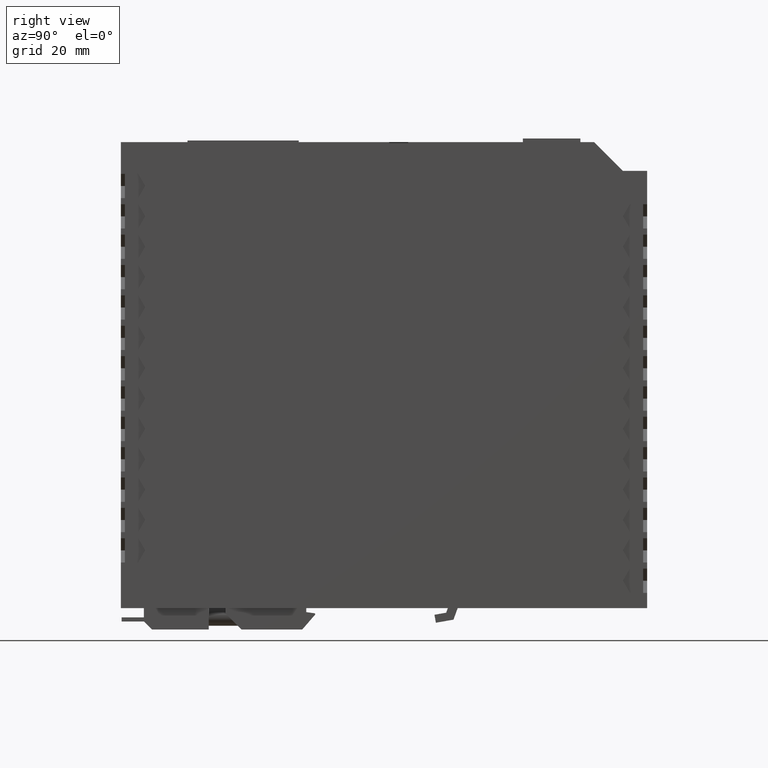
[diagram: clean part render]
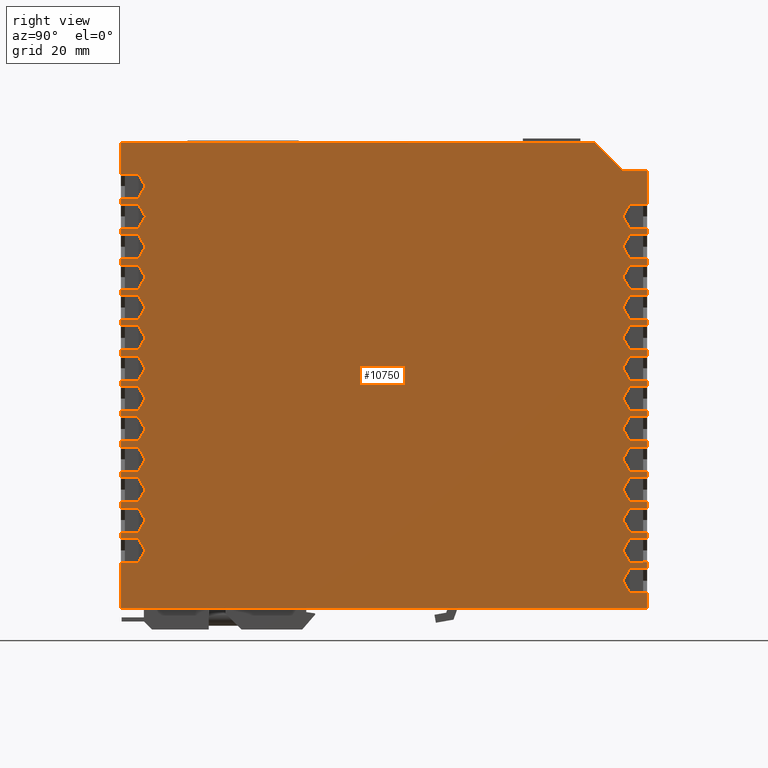
[diagram: same view with one face highlighted and labeled with its STEP entity id]
A machine part, right view. The second image highlights one B-rep face of the part: STEP entity #10750.
In plain terms, the highlighted planar face has unit normal (-1, 0, 0).
Its self-contained STEP definition (entity closure, byte-faithful):
#640=CARTESIAN_POINT('',(32.,-65.,1.));
#650=DIRECTION('',(-1.,0.,0.));
#660=DIRECTION('',(0.,1.,0.));
#670=AXIS2_PLACEMENT_3D('',#640,#650,#660);
#680=PLANE('',#670);
#690=CARTESIAN_POINT('',(32.,-65.,-113.527604780797));
#700=DIRECTION('',(0.,1.,0.));
#710=VECTOR('',#700,1.);
#720=LINE('',#690,#710);
#730=CARTESIAN_POINT('',(32.,-65.,-113.527604780797));
#740=VERTEX_POINT('',#730);
#750=CARTESIAN_POINT('',(32.,65.,-113.527604780797));
#760=VERTEX_POINT('',#750);
#770=EDGE_CURVE('',#740,#760,#720,.T.);
#780=ORIENTED_EDGE('',*,*,#770,.T.);
#790=CARTESIAN_POINT('',(32.,-65.,1.));
#800=DIRECTION('',(0.,0.,1.));
#810=VECTOR('',#800,1.);
#820=LINE('',#790,#810);
#830=CARTESIAN_POINT('',(32.,-65.,-102.277604780797));
#840=VERTEX_POINT('',#830);
#850=EDGE_CURVE('',#740,#840,#820,.T.);
#860=ORIENTED_EDGE('',*,*,#850,.F.);
#870=CARTESIAN_POINT('',(32.,-65.,-102.277604780797));
#880=DIRECTION('',(0.,1.,0.));
#890=VECTOR('',#880,1.);
#900=LINE('',#870,#890);
#910=CARTESIAN_POINT('',(32.,-60.73,-102.277604780797));
#920=VERTEX_POINT('',#910);
#930=EDGE_CURVE('',#840,#920,#900,.T.);
#940=ORIENTED_EDGE('',*,*,#930,.F.);
#950=CARTESIAN_POINT('',(32.,-0.829909571573609,1.47239521920267));
#960=DIRECTION('',(0.,0.500000000000017,0.866025403784429));
#970=VECTOR('',#960,1.);
#980=LINE('',#950,#970);
#990=CARTESIAN_POINT('',(32.,-58.997949192431,-99.2776047807974));
#1000=VERTEX_POINT('',#990);
#1010=EDGE_CURVE('',#920,#1000,#980,.T.);
#1020=ORIENTED_EDGE('',*,*,#1010,.F.);
#1030=CARTESIAN_POINT('',(32.,-117.165988813288,1.47239521920267));
#1040=DIRECTION('',(0.,-0.500000000000017,0.866025403784429));
#1050=VECTOR('',#1040,1.);
#1060=LINE('',#1030,#1050);
#1070=CARTESIAN_POINT('',(32.,-60.73,-96.2776047807973));
#1080=VERTEX_POINT('',#1070);
#1090=EDGE_CURVE('',#1000,#1080,#1060,.T.);
#1100=ORIENTED_EDGE('',*,*,#1090,.F.);
#1110=CARTESIAN_POINT('',(32.,-65.,-96.2776047807973));
#1120=DIRECTION('',(0.,-1.,0.));
#1130=VECTOR('',#1120,1.);
#1140=LINE('',#1110,#1130);
#1150=CARTESIAN_POINT('',(32.,-65.,-96.2776047807973));
#1160=VERTEX_POINT('',#1150);
#1170=EDGE_CURVE('',#1080,#1160,#1140,.T.);
#1180=ORIENTED_EDGE('',*,*,#1170,.F.);
#1190=CARTESIAN_POINT('',(32.,-65.,1.47239521920267));
#1200=DIRECTION('',(0.,0.,1.));
#1210=VECTOR('',#1200,1.);
#1220=LINE('',#1190,#1210);
#1230=CARTESIAN_POINT('',(32.,-65.,-94.7776047807973));
#1240=VERTEX_POINT('',#1230);
#1250=EDGE_CURVE('',#1160,#1240,#1220,.T.);
#1260=ORIENTED_EDGE('',*,*,#1250,.F.);
#1270=CARTESIAN_POINT('',(32.,-65.,-94.7776047807973));
#1280=DIRECTION('',(0.,1.,0.));
#1290=VECTOR('',#1280,1.);
#1300=LINE('',#1270,#1290);
#1310=CARTESIAN_POINT('',(32.,-60.73,-94.7776047807973));
#1320=VERTEX_POINT('',#1310);
#1330=EDGE_CURVE('',#1240,#1320,#1300,.T.);
#1340=ORIENTED_EDGE('',*,*,#1330,.F.);
#1350=CARTESIAN_POINT('',(32.,-5.16003659049599,1.47239521920267));
#1360=DIRECTION('',(0.,0.500000000000017,0.866025403784429));
#1370=VECTOR('',#1360,1.);
#1380=LINE('',#1350,#1370);
#1390=CARTESIAN_POINT('',(32.,-58.997949192431,-91.7776047807974));
#1400=VERTEX_POINT('',#1390);
#1410=EDGE_CURVE('',#1320,#1400,#1380,.T.);
#1420=ORIENTED_EDGE('',*,*,#1410,.F.);
#1430=CARTESIAN_POINT('',(32.,-112.835861794366,1.47239521920267));
#1440=DIRECTION('',(0.,-0.500000000000017,0.866025403784429));
#1450=VECTOR('',#1440,1.);
#1460=LINE('',#1430,#1450);
#1470=CARTESIAN_POINT('',(32.,-60.73,-88.7776047807973));
#1480=VERTEX_POINT('',#1470);
#1490=EDGE_CURVE('',#1400,#1480,#1460,.T.);
#1500=ORIENTED_EDGE('',*,*,#1490,.F.);
#1510=CARTESIAN_POINT('',(32.,-65.,-88.7776047807973));
#1520=DIRECTION('',(0.,-1.,0.));
#1530=VECTOR('',#1520,1.);
#1540=LINE('',#1510,#1530);
#1550=CARTESIAN_POINT('',(32.,-65.,-88.7776047807973));
#1560=VERTEX_POINT('',#1550);
#1570=EDGE_CURVE('',#1480,#1560,#1540,.T.);
#1580=ORIENTED_EDGE('',*,*,#1570,.F.);
#1590=CARTESIAN_POINT('',(32.,-65.,-87.2776047807973));
#1600=VERTEX_POINT('',#1590);
#1610=EDGE_CURVE('',#1560,#1600,#1220,.T.);
#1620=ORIENTED_EDGE('',*,*,#1610,.F.);
#1630=CARTESIAN_POINT('',(32.,-65.,-87.2776047807973));
#1640=DIRECTION('',(0.,1.,0.));
#1650=VECTOR('',#1640,1.);
#1660=LINE('',#1630,#1650);
#1670=CARTESIAN_POINT('',(32.,-60.73,-87.2776047807973));
#1680=VERTEX_POINT('',#1670);
#1690=EDGE_CURVE('',#1600,#1680,#1660,.T.);
#1700=ORIENTED_EDGE('',*,*,#1690,.F.);
#1710=CARTESIAN_POINT('',(32.,-9.49016360941838,1.47239521920267));
#1720=DIRECTION('',(0.,0.500000000000017,0.866025403784429));
#1730=VECTOR('',#1720,1.);
#1740=LINE('',#1710,#1730);
#1750=CARTESIAN_POINT('',(32.,-58.997949192431,-84.2776047807973));
#1760=VERTEX_POINT('',#1750);
#1770=EDGE_CURVE('',#1680,#1760,#1740,.T.);
#1780=ORIENTED_EDGE('',*,*,#1770,.F.);
#1790=CARTESIAN_POINT('',(32.,-108.505734775444,1.47239521920267));
#1800=DIRECTION('',(0.,-0.500000000000017,0.866025403784429));
#1810=VECTOR('',#1800,1.);
#1820=LINE('',#1790,#1810);
#1830=CARTESIAN_POINT('',(32.,-60.73,-81.2776047807973));
#1840=VERTEX_POINT('',#1830);
#1850=EDGE_CURVE('',#1760,#1840,#1820,.T.);
#1860=ORIENTED_EDGE('',*,*,#1850,.F.);
#1870=CARTESIAN_POINT('',(32.,-65.,-81.2776047807973));
#1880=DIRECTION('',(0.,-1.,0.));
#1890=VECTOR('',#1880,1.);
#1900=LINE('',#1870,#1890);
#1910=CARTESIAN_POINT('',(32.,-65.,-81.2776047807973));
#1920=VERTEX_POINT('',#1910);
#1930=EDGE_CURVE('',#1840,#1920,#1900,.T.);
#1940=ORIENTED_EDGE('',*,*,#1930,.F.);
#1950=CARTESIAN_POINT('',(32.,-65.,-79.7776047807973));
#1960=VERTEX_POINT('',#1950);
#1970=EDGE_CURVE('',#1920,#1960,#1220,.T.);
#1980=ORIENTED_EDGE('',*,*,#1970,.F.);
#1990=CARTESIAN_POINT('',(32.,-65.,-79.7776047807973));
#2000=DIRECTION('',(0.,1.,0.));
#2010=VECTOR('',#2000,1.);
#2020=LINE('',#1990,#2010);
#2030=CARTESIAN_POINT('',(32.,-60.73,-79.7776047807973));
#2040=VERTEX_POINT('',#2030);
#2050=EDGE_CURVE('',#1960,#2040,#2020,.T.);
#2060=ORIENTED_EDGE('',*,*,#2050,.F.);
#2070=CARTESIAN_POINT('',(32.,-13.8202906283408,1.47239521920267));
#2080=DIRECTION('',(0.,0.500000000000017,0.866025403784429));
#2090=VECTOR('',#2080,1.);
#2100=LINE('',#2070,#2090);
#2110=CARTESIAN_POINT('',(32.,-58.997949192431,-76.7776047807974));
#2120=VERTEX_POINT('',#2110);
#2130=EDGE_CURVE('',#2040,#2120,#2100,.T.);
#2140=ORIENTED_EDGE('',*,*,#2130,.F.);
#2150=CARTESIAN_POINT('',(32.,-104.175607756521,1.47239521920267));
#2160=DIRECTION('',(0.,-0.500000000000017,0.866025403784429));
#2170=VECTOR('',#2160,1.);
#2180=LINE('',#2150,#2170);
#2190=CARTESIAN_POINT('',(32.,-60.73,-73.7776047807973));
#2200=VERTEX_POINT('',#2190);
#2210=EDGE_CURVE('',#2120,#2200,#2180,.T.);
#2220=ORIENTED_EDGE('',*,*,#2210,.F.);
#2230=CARTESIAN_POINT('',(32.,-65.,-73.7776047807973));
#2240=DIRECTION('',(0.,-1.,0.));
#2250=VECTOR('',#2240,1.);
#2260=LINE('',#2230,#2250);
#2270=CARTESIAN_POINT('',(32.,-65.,-73.7776047807973));
#2280=VERTEX_POINT('',#2270);
#2290=EDGE_CURVE('',#2200,#2280,#2260,.T.);
#2300=ORIENTED_EDGE('',*,*,#2290,.F.);
#2310=CARTESIAN_POINT('',(32.,-65.,-72.2776047807973));
#2320=VERTEX_POINT('',#2310);
#2330=EDGE_CURVE('',#2280,#2320,#1220,.T.);
#2340=ORIENTED_EDGE('',*,*,#2330,.F.);
#2350=CARTESIAN_POINT('',(32.,-65.,-72.2776047807973));
#2360=DIRECTION('',(0.,1.,0.));
#2370=VECTOR('',#2360,1.);
#2380=LINE('',#2350,#2370);
#2390=CARTESIAN_POINT('',(32.,-60.73,-72.2776047807973));
#2400=VERTEX_POINT('',#2390);
#2410=EDGE_CURVE('',#2320,#2400,#2380,.T.);
#2420=ORIENTED_EDGE('',*,*,#2410,.F.);
#2430=CARTESIAN_POINT('',(32.,-18.1504176472631,1.47239521920267));
#2440=DIRECTION('',(0.,0.500000000000017,0.866025403784429));
#2450=VECTOR('',#2440,1.);
#2460=LINE('',#2430,#2450);
#2470=CARTESIAN_POINT('',(32.,-58.9979491924311,-69.2776047807973));
#2480=VERTEX_POINT('',#2470);
#2490=EDGE_CURVE('',#2400,#2480,#2460,.T.);
#2500=ORIENTED_EDGE('',*,*,#2490,.F.);
#2510=CARTESIAN_POINT('',(32.,-99.8454807375989,1.47239521920267));
#2520=DIRECTION('',(0.,-0.500000000000017,0.866025403784429));
#2530=VECTOR('',#2520,1.);
#2540=LINE('',#2510,#2530);
#2550=CARTESIAN_POINT('',(32.,-60.73,-66.2776047807973));
#2560=VERTEX_POINT('',#2550);
#2570=EDGE_CURVE('',#2480,#2560,#2540,.T.);
#2580=ORIENTED_EDGE('',*,*,#2570,.F.);
#2590=CARTESIAN_POINT('',(32.,-65.,-66.2776047807973));
#2600=DIRECTION('',(0.,-1.,0.));
#2610=VECTOR('',#2600,1.);
#2620=LINE('',#2590,#2610);
#2630=CARTESIAN_POINT('',(32.,-65.,-66.2776047807973));
#2640=VERTEX_POINT('',#2630);
#2650=EDGE_CURVE('',#2560,#2640,#2620,.T.);
#2660=ORIENTED_EDGE('',*,*,#2650,.F.);
#2670=CARTESIAN_POINT('',(32.,-65.,-64.7776047807973));
#2680=VERTEX_POINT('',#2670);
#2690=EDGE_CURVE('',#2640,#2680,#1220,.T.);
#2700=ORIENTED_EDGE('',*,*,#2690,.F.);
#2710=CARTESIAN_POINT('',(32.,-65.,-64.7776047807973));
#2720=DIRECTION('',(0.,1.,0.));
#2730=VECTOR('',#2720,1.);
#2740=LINE('',#2710,#2730);
#2750=CARTESIAN_POINT('',(32.,-60.73,-64.7776047807973));
#2760=VERTEX_POINT('',#2750);
#2770=EDGE_CURVE('',#2680,#2760,#2740,.T.);
#2780=ORIENTED_EDGE('',*,*,#2770,.F.);
#2790=CARTESIAN_POINT('',(32.,-22.4805446661855,1.47239521920267));
#2800=DIRECTION('',(0.,0.500000000000017,0.866025403784429));
#2810=VECTOR('',#2800,1.);
#2820=LINE('',#2790,#2810);
#2830=CARTESIAN_POINT('',(32.,-58.997949192431,-61.7776047807973));
#2840=VERTEX_POINT('',#2830);
#2850=EDGE_CURVE('',#2760,#2840,#2820,.T.);
#2860=ORIENTED_EDGE('',*,*,#2850,.F.);
#2870=CARTESIAN_POINT('',(32.,-95.5153537186765,1.47239521920267));
#2880=DIRECTION('',(0.,-0.500000000000017,0.866025403784429));
#2890=VECTOR('',#2880,1.);
#2900=LINE('',#2870,#2890);
#2910=CARTESIAN_POINT('',(32.,-60.73,-58.7776047807973));
#2920=VERTEX_POINT('',#2910);
#2930=EDGE_CURVE('',#2840,#2920,#2900,.T.);
#2940=ORIENTED_EDGE('',*,*,#2930,.F.);
#2950=CARTESIAN_POINT('',(32.,-65.,-58.7776047807973));
#2960=DIRECTION('',(0.,-1.,0.));
#2970=VECTOR('',#2960,1.);
#2980=LINE('',#2950,#2970);
#2990=CARTESIAN_POINT('',(32.,-65.,-58.7776047807973));
#3000=VERTEX_POINT('',#2990);
#3010=EDGE_CURVE('',#2920,#3000,#2980,.T.);
#3020=ORIENTED_EDGE('',*,*,#3010,.F.);
#3030=CARTESIAN_POINT('',(32.,-65.,-57.2776047807973));
#3040=VERTEX_POINT('',#3030);
#3050=EDGE_CURVE('',#3000,#3040,#1220,.T.);
#3060=ORIENTED_EDGE('',*,*,#3050,.F.);
#3070=CARTESIAN_POINT('',(32.,-65.,-57.2776047807973));
#3080=DIRECTION('',(0.,1.,0.));
#3090=VECTOR('',#3080,1.);
#3100=LINE('',#3070,#3090);
#3110=CARTESIAN_POINT('',(32.,-60.73,-57.2776047807973));
#3120=VERTEX_POINT('',#3110);
#3130=EDGE_CURVE('',#3040,#3120,#3100,.T.);
#3140=ORIENTED_EDGE('',*,*,#3130,.F.);
#3150=CARTESIAN_POINT('',(32.,-26.8106716851079,1.47239521920267));
#3160=DIRECTION('',(0.,0.500000000000017,0.866025403784429));
#3170=VECTOR('',#3160,1.);
#3180=LINE('',#3150,#3170);
#3190=CARTESIAN_POINT('',(32.,-58.997949192431,-54.2776047807973));
#3200=VERTEX_POINT('',#3190);
#3210=EDGE_CURVE('',#3120,#3200,#3180,.T.);
#3220=ORIENTED_EDGE('',*,*,#3210,.F.);
#3230=CARTESIAN_POINT('',(32.,-91.1852266997541,1.47239521920267));
#3240=DIRECTION('',(0.,-0.500000000000017,0.866025403784429));
#3250=VECTOR('',#3240,1.);
#3260=LINE('',#3230,#3250);
#3270=CARTESIAN_POINT('',(32.,-60.73,-51.2776047807973));
#3280=VERTEX_POINT('',#3270);
#3290=EDGE_CURVE('',#3200,#3280,#3260,.T.);
#3300=ORIENTED_EDGE('',*,*,#3290,.F.);
#3310=CARTESIAN_POINT('',(32.,-65.,-51.2776047807973));
#3320=DIRECTION('',(0.,-1.,0.));
#3330=VECTOR('',#3320,1.);
#3340=LINE('',#3310,#3330);
#3350=CARTESIAN_POINT('',(32.,-65.,-51.2776047807973));
#3360=VERTEX_POINT('',#3350);
#3370=EDGE_CURVE('',#3280,#3360,#3340,.T.);
#3380=ORIENTED_EDGE('',*,*,#3370,.F.);
#3390=CARTESIAN_POINT('',(32.,-65.,-49.7776047807973));
#3400=VERTEX_POINT('',#3390);
#3410=EDGE_CURVE('',#3360,#3400,#1220,.T.);
#3420=ORIENTED_EDGE('',*,*,#3410,.F.);
#3430=CARTESIAN_POINT('',(32.,-65.,-49.7776047807973));
#3440=DIRECTION('',(0.,1.,0.));
#3450=VECTOR('',#3440,1.);
#3460=LINE('',#3430,#3450);
#3470=CARTESIAN_POINT('',(32.,-60.73,-49.7776047807973));
#3480=VERTEX_POINT('',#3470);
#3490=EDGE_CURVE('',#3400,#3480,#3460,.T.);
#3500=ORIENTED_EDGE('',*,*,#3490,.F.);
#3510=CARTESIAN_POINT('',(32.,-31.1407987040303,1.47239521920267));
#3520=DIRECTION('',(0.,0.500000000000017,0.866025403784429));
#3530=VECTOR('',#3520,1.);
#3540=LINE('',#3510,#3530);
#3550=CARTESIAN_POINT('',(32.,-58.997949192431,-46.7776047807973));
#3560=VERTEX_POINT('',#3550);
#3570=EDGE_CURVE('',#3480,#3560,#3540,.T.);
#3580=ORIENTED_EDGE('',*,*,#3570,.F.);
#3590=CARTESIAN_POINT('',(32.,-86.8550996808317,1.47239521920267));
#3600=DIRECTION('',(0.,-0.500000000000017,0.866025403784429));
#3610=VECTOR('',#3600,1.);
#3620=LINE('',#3590,#3610);
#3630=CARTESIAN_POINT('',(32.,-60.73,-43.7776047807973));
#3640=VERTEX_POINT('',#3630);
#3650=EDGE_CURVE('',#3560,#3640,#3620,.T.);
#3660=ORIENTED_EDGE('',*,*,#3650,.F.);
#3670=CARTESIAN_POINT('',(32.,-65.,-43.7776047807973));
#3680=DIRECTION('',(0.,-1.,0.));
#3690=VECTOR('',#3680,1.);
#3700=LINE('',#3670,#3690);
#3710=CARTESIAN_POINT('',(32.,-65.,-43.7776047807973));
#3720=VERTEX_POINT('',#3710);
#3730=EDGE_CURVE('',#3640,#3720,#3700,.T.);
#3740=ORIENTED_EDGE('',*,*,#3730,.F.);
#3750=CARTESIAN_POINT('',(32.,-65.,-42.2776047807973));
#3760=VERTEX_POINT('',#3750);
#3770=EDGE_CURVE('',#3720,#3760,#1220,.T.);
#3780=ORIENTED_EDGE('',*,*,#3770,.F.);
#3790=CARTESIAN_POINT('',(32.,-65.,-42.2776047807973));
#3800=DIRECTION('',(0.,1.,0.));
#3810=VECTOR('',#3800,1.);
#3820=LINE('',#3790,#3810);
#3830=CARTESIAN_POINT('',(32.,-60.73,-42.2776047807973));
#3840=VERTEX_POINT('',#3830);
#3850=EDGE_CURVE('',#3760,#3840,#3820,.T.);
#3860=ORIENTED_EDGE('',*,*,#3850,.F.);
#3870=CARTESIAN_POINT('',(32.,-35.4709257229527,1.47239521920267));
#3880=DIRECTION('',(0.,0.500000000000017,0.866025403784429));
#3890=VECTOR('',#3880,1.);
#3900=LINE('',#3870,#3890);
#3910=CARTESIAN_POINT('',(32.,-58.997949192431,-39.2776047807973));
#3920=VERTEX_POINT('',#3910);
#3930=EDGE_CURVE('',#3840,#3920,#3900,.T.);
#3940=ORIENTED_EDGE('',*,*,#3930,.F.);
#3950=CARTESIAN_POINT('',(32.,-82.5249726619093,1.47239521920267));
#3960=DIRECTION('',(0.,-0.500000000000017,0.866025403784429));
#3970=VECTOR('',#3960,1.);
#3980=LINE('',#3950,#3970);
#3990=CARTESIAN_POINT('',(32.,-60.73,-36.2776047807973));
#4000=VERTEX_POINT('',#3990);
#4010=EDGE_CURVE('',#3920,#4000,#3980,.T.);
#4020=ORIENTED_EDGE('',*,*,#4010,.F.);
#4030=CARTESIAN_POINT('',(32.,-65.,-36.2776047807973));
#4040=DIRECTION('',(0.,-1.,0.));
#4050=VECTOR('',#4040,1.);
#4060=LINE('',#4030,#4050);
#4070=CARTESIAN_POINT('',(32.,-65.,-36.2776047807973));
#4080=VERTEX_POINT('',#4070);
#4090=EDGE_CURVE('',#4000,#4080,#4060,.T.);
#4100=ORIENTED_EDGE('',*,*,#4090,.F.);
#4110=CARTESIAN_POINT('',(32.,-65.,-34.7776047807973));
#4120=VERTEX_POINT('',#4110);
#4130=EDGE_CURVE('',#4080,#4120,#1220,.T.);
#4140=ORIENTED_EDGE('',*,*,#4130,.F.);
#4150=CARTESIAN_POINT('',(32.,-65.,-34.7776047807973));
#4160=DIRECTION('',(0.,1.,0.));
#4170=VECTOR('',#4160,1.);
#4180=LINE('',#4150,#4170);
#4190=CARTESIAN_POINT('',(32.,-60.73,-34.7776047807973));
#4200=VERTEX_POINT('',#4190);
#4210=EDGE_CURVE('',#4120,#4200,#4180,.T.);
#4220=ORIENTED_EDGE('',*,*,#4210,.F.);
#4230=CARTESIAN_POINT('',(32.,-39.8010527418751,1.47239521920267));
#4240=DIRECTION('',(0.,0.500000000000017,0.866025403784429));
#4250=VECTOR('',#4240,1.);
#4260=LINE('',#4230,#4250);
#4270=CARTESIAN_POINT('',(32.,-58.997949192431,-31.7776047807974));
#4280=VERTEX_POINT('',#4270);
#4290=EDGE_CURVE('',#4200,#4280,#4260,.T.);
#4300=ORIENTED_EDGE('',*,*,#4290,.F.);
#4310=CARTESIAN_POINT('',(32.,-78.194845642987,1.47239521920267));
#4320=DIRECTION('',(0.,-0.500000000000017,0.866025403784429));
#4330=VECTOR('',#4320,1.);
#4340=LINE('',#4310,#4330);
#4350=CARTESIAN_POINT('',(32.,-60.73,-28.7776047807973));
#4360=VERTEX_POINT('',#4350);
#4370=EDGE_CURVE('',#4280,#4360,#4340,.T.);
#4380=ORIENTED_EDGE('',*,*,#4370,.F.);
#4390=CARTESIAN_POINT('',(32.,-65.,-28.7776047807973));
#4400=DIRECTION('',(0.,-1.,0.));
#4410=VECTOR('',#4400,1.);
#4420=LINE('',#4390,#4410);
#4430=CARTESIAN_POINT('',(32.,-65.,-28.7776047807973));
#4440=VERTEX_POINT('',#4430);
#4450=EDGE_CURVE('',#4360,#4440,#4420,.T.);
#4460=ORIENTED_EDGE('',*,*,#4450,.F.);
#4470=CARTESIAN_POINT('',(32.,-65.,-27.2776047807973));
#4480=VERTEX_POINT('',#4470);
#4490=EDGE_CURVE('',#4440,#4480,#1220,.T.);
#4500=ORIENTED_EDGE('',*,*,#4490,.F.);
#4510=CARTESIAN_POINT('',(32.,-65.,-27.2776047807973));
#4520=DIRECTION('',(0.,1.,0.));
#4530=VECTOR('',#4520,1.);
#4540=LINE('',#4510,#4530);
#4550=CARTESIAN_POINT('',(32.,-60.73,-27.2776047807973));
#4560=VERTEX_POINT('',#4550);
#4570=EDGE_CURVE('',#4480,#4560,#4540,.T.);
#4580=ORIENTED_EDGE('',*,*,#4570,.F.);
#4590=CARTESIAN_POINT('',(32.,-44.1311797607975,1.47239521920267));
#4600=DIRECTION('',(0.,0.500000000000017,0.866025403784429));
#4610=VECTOR('',#4600,1.);
#4620=LINE('',#4590,#4610);
#4630=CARTESIAN_POINT('',(32.,-58.997949192431,-24.2776047807973));
#4640=VERTEX_POINT('',#4630);
#4650=EDGE_CURVE('',#4560,#4640,#4620,.T.);
#4660=ORIENTED_EDGE('',*,*,#4650,.F.);
#4670=CARTESIAN_POINT('',(32.,-73.8647186240646,1.47239521920267));
#4680=DIRECTION('',(0.,-0.500000000000017,0.866025403784429));
#4690=VECTOR('',#4680,1.);
#4700=LINE('',#4670,#4690);
#4710=CARTESIAN_POINT('',(32.,-60.73,-21.2776047807973));
#4720=VERTEX_POINT('',#4710);
#4730=EDGE_CURVE('',#4640,#4720,#4700,.T.);
#4740=ORIENTED_EDGE('',*,*,#4730,.F.);
#4750=CARTESIAN_POINT('',(32.,-65.,-21.2776047807973));
#4760=DIRECTION('',(0.,-1.,0.));
#4770=VECTOR('',#4760,1.);
#4780=LINE('',#4750,#4770);
#4790=CARTESIAN_POINT('',(32.,-65.,-21.2776047807973));
#4800=VERTEX_POINT('',#4790);
#4810=EDGE_CURVE('',#4720,#4800,#4780,.T.);
#4820=ORIENTED_EDGE('',*,*,#4810,.F.);
#4830=CARTESIAN_POINT('',(32.,-65.,-19.7776047807973));
#4840=VERTEX_POINT('',#4830);
#4850=EDGE_CURVE('',#4800,#4840,#1220,.T.);
#4860=ORIENTED_EDGE('',*,*,#4850,.F.);
#4870=CARTESIAN_POINT('',(32.,-65.,-19.7776047807973));
#4880=DIRECTION('',(0.,1.,0.));
#4890=VECTOR('',#4880,1.);
#4900=LINE('',#4870,#4890);
#4910=CARTESIAN_POINT('',(32.,-60.73,-19.7776047807973));
#4920=VERTEX_POINT('',#4910);
#4930=EDGE_CURVE('',#4840,#4920,#4900,.T.);
#4940=ORIENTED_EDGE('',*,*,#4930,.F.);
#4950=CARTESIAN_POINT('',(32.,-48.4613067797199,1.47239521920267));
#4960=DIRECTION('',(0.,0.500000000000017,0.866025403784429));
#4970=VECTOR('',#4960,1.);
#4980=LINE('',#4950,#4970);
#4990=CARTESIAN_POINT('',(32.,-58.9979491924311,-16.7776047807973));
#5000=VERTEX_POINT('',#4990);
#5010=EDGE_CURVE('',#4920,#5000,#4980,.T.);
#5020=ORIENTED_EDGE('',*,*,#5010,.F.);
#5030=CARTESIAN_POINT('',(32.,-69.5345916051422,1.47239521920267));
#5040=DIRECTION('',(0.,-0.500000000000017,0.866025403784429));
#5050=VECTOR('',#5040,1.);
#5060=LINE('',#5030,#5050);
#5070=CARTESIAN_POINT('',(32.,-60.73,-13.7776047807973));
#5080=VERTEX_POINT('',#5070);
#5090=EDGE_CURVE('',#5000,#5080,#5060,.T.);
#5100=ORIENTED_EDGE('',*,*,#5090,.F.);
#5110=CARTESIAN_POINT('',(32.,-65.,-13.7776047807973));
#5120=DIRECTION('',(0.,-1.,0.));
#5130=VECTOR('',#5120,1.);
#5140=LINE('',#5110,#5130);
#5150=CARTESIAN_POINT('',(32.,-65.,-13.7776047807973));
#5160=VERTEX_POINT('',#5150);
#5170=EDGE_CURVE('',#5080,#5160,#5140,.T.);
#5180=ORIENTED_EDGE('',*,*,#5170,.F.);
#5190=CARTESIAN_POINT('',(32.,-65.,-12.2776047807973));
#5200=VERTEX_POINT('',#5190);
#5210=EDGE_CURVE('',#5160,#5200,#1220,.T.);
#5220=ORIENTED_EDGE('',*,*,#5210,.F.);
#5230=CARTESIAN_POINT('',(32.,-65.,-12.2776047807973));
#5240=DIRECTION('',(0.,1.,0.));
#5250=VECTOR('',#5240,1.);
#5260=LINE('',#5230,#5250);
#5270=CARTESIAN_POINT('',(32.,-60.73,-12.2776047807973));
#5280=VERTEX_POINT('',#5270);
#5290=EDGE_CURVE('',#5200,#5280,#5260,.T.);
#5300=ORIENTED_EDGE('',*,*,#5290,.F.);
#5310=CARTESIAN_POINT('',(32.,-52.7914337986422,1.47239521920267));
#5320=DIRECTION('',(0.,0.500000000000017,0.866025403784429));
#5330=VECTOR('',#5320,1.);
#5340=LINE('',#5310,#5330);
#5350=CARTESIAN_POINT('',(32.,-58.997949192431,-9.27760478079738));
#5360=VERTEX_POINT('',#5350);
#5370=EDGE_CURVE('',#5280,#5360,#5340,.T.);
#5380=ORIENTED_EDGE('',*,*,#5370,.F.);
#5390=CARTESIAN_POINT('',(32.,-65.2044645862198,1.47239521920267));
#5400=DIRECTION('',(0.,-0.500000000000017,0.866025403784429));
#5410=VECTOR('',#5400,1.);
#5420=LINE('',#5390,#5410);
#5430=CARTESIAN_POINT('',(32.,-60.73,-6.27760478079733));
#5440=VERTEX_POINT('',#5430);
#5450=EDGE_CURVE('',#5360,#5440,#5420,.T.);
#5460=ORIENTED_EDGE('',*,*,#5450,.F.);
#5470=CARTESIAN_POINT('',(32.,-65.,-6.27760478079733));
#5480=DIRECTION('',(0.,-1.,0.));
#5490=VECTOR('',#5480,1.);
#5500=LINE('',#5470,#5490);
#5510=CARTESIAN_POINT('',(32.,-65.,-6.27760478079733));
#5520=VERTEX_POINT('',#5510);
#5530=EDGE_CURVE('',#5440,#5520,#5500,.T.);
#5540=ORIENTED_EDGE('',*,*,#5530,.F.);
#5550=CARTESIAN_POINT('',(32.,-65.,1.));
#5560=DIRECTION('',(0.,0.,1.));
#5570=VECTOR('',#5560,1.);
#5580=LINE('',#5550,#5570);
#5590=CARTESIAN_POINT('',(32.,-65.,1.37239521920267));
#5600=VERTEX_POINT('',#5590);
#5610=EDGE_CURVE('',#5520,#5600,#5580,.T.);
#5620=ORIENTED_EDGE('',*,*,#5610,.F.);
#5630=CARTESIAN_POINT('',(32.,-65.,1.37239521920267));
#5640=DIRECTION('',(0.,1.,0.));
#5650=VECTOR('',#5640,1.);
#5660=LINE('',#5630,#5650);
#5670=CARTESIAN_POINT('',(32.,52.0000000000071,1.37239521920267));
#5680=VERTEX_POINT('',#5670);
#5690=EDGE_CURVE('',#5600,#5680,#5660,.T.);
#5700=ORIENTED_EDGE('',*,*,#5690,.F.);
#5710=CARTESIAN_POINT('',(32.,52.0000000000071,1.));
#5720=DIRECTION('',(0.,0.,-1.));
#5730=VECTOR('',#5720,1.);
#5740=LINE('',#5710,#5730);
#5750=CARTESIAN_POINT('',(32.,52.0000000000071,1.47683263784265));
#5760=VERTEX_POINT('',#5750);
#5770=EDGE_CURVE('',#5760,#5680,#5740,.T.);
#5780=ORIENTED_EDGE('',*,*,#5770,.T.);
#5790=CARTESIAN_POINT('',(32.,-65.,118.47683263785));
#5800=DIRECTION('',(0.,-0.707106781186548,0.707106781186548));
#5810=VECTOR('',#5800,1.);
#5820=LINE('',#5790,#5810);
#5830=CARTESIAN_POINT('',(32.,59.0044374186471,-5.52760478079733));
#5840=VERTEX_POINT('',#5830);
#5850=EDGE_CURVE('',#5840,#5760,#5820,.T.);
#5860=ORIENTED_EDGE('',*,*,#5850,.T.);
#5870=CARTESIAN_POINT('',(32.,-65.,-5.52760478079733));
#5880=DIRECTION('',(0.,1.,0.));
#5890=VECTOR('',#5880,1.);
#5900=LINE('',#5870,#5890);
#5910=CARTESIAN_POINT('',(32.,65.,-5.52760478079733));
#5920=VERTEX_POINT('',#5910);
#5930=EDGE_CURVE('',#5840,#5920,#5900,.T.);
#5940=ORIENTED_EDGE('',*,*,#5930,.F.);
#5950=CARTESIAN_POINT('',(32.,65.,1.47239521920267));
#5960=DIRECTION('',(0.,0.,-1.));
#5970=VECTOR('',#5960,1.);
#5980=LINE('',#5950,#5970);
#5990=CARTESIAN_POINT('',(32.,65.,-13.7776047807973));
#6000=VERTEX_POINT('',#5990);
#6010=EDGE_CURVE('',#5920,#6000,#5980,.T.);
#6020=ORIENTED_EDGE('',*,*,#6010,.F.);
#6030=CARTESIAN_POINT('',(32.,-65.,-13.7776047807973));
#6040=DIRECTION('',(0.,-1.,0.));
#6050=VECTOR('',#6040,1.);
#6060=LINE('',#6030,#6050);
#6070=CARTESIAN_POINT('',(32.,60.729999999969,-13.7776047807973));
#6080=VERTEX_POINT('',#6070);
#6090=EDGE_CURVE('',#6000,#6080,#6060,.T.);
#6100=ORIENTED_EDGE('',*,*,#6090,.F.);
#6110=CARTESIAN_POINT('',(32.,69.5345916051111,1.47239521920267));
#6120=DIRECTION('',(0.,-0.500000000000017,-0.866025403784429));
#6130=VECTOR('',#6120,1.);
#6140=LINE('',#6110,#6130);
#6150=CARTESIAN_POINT('',(32.,58.9979491924155,-16.7776047807704));
#6160=VERTEX_POINT('',#6150);
#6170=EDGE_CURVE('',#6080,#6160,#6140,.T.);
#6180=ORIENTED_EDGE('',*,*,#6170,.F.);
#6190=CARTESIAN_POINT('',(32.,48.4613067797199,1.47239521920267));
#6200=DIRECTION('',(-0.,0.500000000000017,-0.866025403784429));
#6210=VECTOR('',#6200,1.);
#6220=LINE('',#6190,#6210);
#6230=CARTESIAN_POINT('',(32.,60.73,-19.7776047807973));
#6240=VERTEX_POINT('',#6230);
#6250=EDGE_CURVE('',#6160,#6240,#6220,.T.);
#6260=ORIENTED_EDGE('',*,*,#6250,.F.);
#6270=CARTESIAN_POINT('',(32.,-65.,-19.7776047807973));
#6280=DIRECTION('',(0.,1.,0.));
#6290=VECTOR('',#6280,1.);
#6300=LINE('',#6270,#6290);
#6310=CARTESIAN_POINT('',(32.,65.,-19.7776047807973));
#6320=VERTEX_POINT('',#6310);
#6330=EDGE_CURVE('',#6240,#6320,#6300,.T.);
#6340=ORIENTED_EDGE('',*,*,#6330,.F.);
#6350=CARTESIAN_POINT('',(32.,65.,-21.2776047807973));
#6360=VERTEX_POINT('',#6350);
#6370=EDGE_CURVE('',#6320,#6360,#5980,.T.);
#6380=ORIENTED_EDGE('',*,*,#6370,.F.);
#6390=CARTESIAN_POINT('',(32.,-65.,-21.2776047807973));
#6400=DIRECTION('',(0.,-1.,0.));
#6410=VECTOR('',#6400,1.);
#6420=LINE('',#6390,#6410);
#6430=CARTESIAN_POINT('',(32.,60.729999999969,-21.2776047807973));
#6440=VERTEX_POINT('',#6430);
#6450=EDGE_CURVE('',#6360,#6440,#6420,.T.);
#6460=ORIENTED_EDGE('',*,*,#6450,.F.);
#6470=CARTESIAN_POINT('',(32.,73.8647186240335,1.47239521920267));
#6480=DIRECTION('',(0.,-0.500000000000017,-0.866025403784429));
#6490=VECTOR('',#6480,1.);
#6500=LINE('',#6470,#6490);
#6510=CARTESIAN_POINT('',(32.,58.9979491924175,-24.2776047807738));
#6520=VERTEX_POINT('',#6510);
#6530=EDGE_CURVE('',#6440,#6520,#6500,.T.);
#6540=ORIENTED_EDGE('',*,*,#6530,.F.);
#6550=CARTESIAN_POINT('',(32.,44.1311797607975,1.47239521920267));
#6560=DIRECTION('',(-0.,0.500000000000017,-0.866025403784429));
#6570=VECTOR('',#6560,1.);
#6580=LINE('',#6550,#6570);
#6590=CARTESIAN_POINT('',(32.,60.73,-27.2776047807973));
#6600=VERTEX_POINT('',#6590);
#6610=EDGE_CURVE('',#6520,#6600,#6580,.T.);
#6620=ORIENTED_EDGE('',*,*,#6610,.F.);
#6630=CARTESIAN_POINT('',(32.,-65.,-27.2776047807973));
#6640=DIRECTION('',(0.,1.,0.));
#6650=VECTOR('',#6640,1.);
#6660=LINE('',#6630,#6650);
#6670=CARTESIAN_POINT('',(32.,65.,-27.2776047807973));
#6680=VERTEX_POINT('',#6670);
#6690=EDGE_CURVE('',#6600,#6680,#6660,.T.);
#6700=ORIENTED_EDGE('',*,*,#6690,.F.);
#6710=CARTESIAN_POINT('',(32.,65.,-28.7776047807973));
#6720=VERTEX_POINT('',#6710);
#6730=EDGE_CURVE('',#6680,#6720,#5980,.T.);
#6740=ORIENTED_EDGE('',*,*,#6730,.F.);
#6750=CARTESIAN_POINT('',(32.,-65.,-28.7776047807973));
#6760=DIRECTION('',(0.,-1.,0.));
#6770=VECTOR('',#6760,1.);
#6780=LINE('',#6750,#6770);
#6790=CARTESIAN_POINT('',(32.,60.729999999969,-28.7776047807973));
#6800=VERTEX_POINT('',#6790);
#6810=EDGE_CURVE('',#6720,#6800,#6780,.T.);
#6820=ORIENTED_EDGE('',*,*,#6810,.F.);
#6830=CARTESIAN_POINT('',(32.,78.1948456429559,1.47239521920267));
#6840=DIRECTION('',(0.,-0.500000000000017,-0.866025403784429));
#6850=VECTOR('',#6840,1.);
#6860=LINE('',#6830,#6850);
#6870=CARTESIAN_POINT('',(32.,58.9979491924155,-31.7776047807705));
#6880=VERTEX_POINT('',#6870);
#6890=EDGE_CURVE('',#6800,#6880,#6860,.T.);
#6900=ORIENTED_EDGE('',*,*,#6890,.F.);
#6910=CARTESIAN_POINT('',(32.,39.8010527418751,1.47239521920267));
#6920=DIRECTION('',(-0.,0.500000000000017,-0.866025403784429));
#6930=VECTOR('',#6920,1.);
#6940=LINE('',#6910,#6930);
#6950=CARTESIAN_POINT('',(32.,60.73,-34.7776047807973));
#6960=VERTEX_POINT('',#6950);
#6970=EDGE_CURVE('',#6880,#6960,#6940,.T.);
#6980=ORIENTED_EDGE('',*,*,#6970,.F.);
#6990=CARTESIAN_POINT('',(32.,-65.,-34.7776047807973));
#7000=DIRECTION('',(0.,1.,0.));
#7010=VECTOR('',#7000,1.);
#7020=LINE('',#6990,#7010);
#7030=CARTESIAN_POINT('',(32.,65.,-34.7776047807973));
#7040=VERTEX_POINT('',#7030);
#7050=EDGE_CURVE('',#6960,#7040,#7020,.T.);
#7060=ORIENTED_EDGE('',*,*,#7050,.F.);
#7070=CARTESIAN_POINT('',(32.,65.,-36.2776047807973));
#7080=VERTEX_POINT('',#7070);
#7090=EDGE_CURVE('',#7040,#7080,#5980,.T.);
#7100=ORIENTED_EDGE('',*,*,#7090,.F.);
#7110=CARTESIAN_POINT('',(32.,-65.,-36.2776047807973));
#7120=DIRECTION('',(0.,-1.,0.));
#7130=VECTOR('',#7120,1.);
#7140=LINE('',#7110,#7130);
#7150=CARTESIAN_POINT('',(32.,60.729999999969,-36.2776047807973));
#7160=VERTEX_POINT('',#7150);
#7170=EDGE_CURVE('',#7080,#7160,#7140,.T.);
#7180=ORIENTED_EDGE('',*,*,#7170,.F.);
#7190=CARTESIAN_POINT('',(32.,82.5249726618783,1.47239521920267));
#7200=DIRECTION('',(0.,-0.500000000000017,-0.866025403784429));
#7210=VECTOR('',#7200,1.);
#7220=LINE('',#7190,#7210);
#7230=CARTESIAN_POINT('',(32.,58.9979491924155,-39.2776047807705));
#7240=VERTEX_POINT('',#7230);
#7250=EDGE_CURVE('',#7160,#7240,#7220,.T.);
#7260=ORIENTED_EDGE('',*,*,#7250,.F.);
#7270=CARTESIAN_POINT('',(32.,35.4709257229527,1.47239521920267));
#7280=DIRECTION('',(-0.,0.500000000000017,-0.866025403784429));
#7290=VECTOR('',#7280,1.);
#7300=LINE('',#7270,#7290);
#7310=CARTESIAN_POINT('',(32.,60.73,-42.2776047807973));
#7320=VERTEX_POINT('',#7310);
#7330=EDGE_CURVE('',#7240,#7320,#7300,.T.);
#7340=ORIENTED_EDGE('',*,*,#7330,.F.);
#7350=CARTESIAN_POINT('',(32.,-65.,-42.2776047807973));
#7360=DIRECTION('',(0.,1.,0.));
#7370=VECTOR('',#7360,1.);
#7380=LINE('',#7350,#7370);
#7390=CARTESIAN_POINT('',(32.,65.,-42.2776047807973));
#7400=VERTEX_POINT('',#7390);
#7410=EDGE_CURVE('',#7320,#7400,#7380,.T.);
#7420=ORIENTED_EDGE('',*,*,#7410,.F.);
#7430=CARTESIAN_POINT('',(32.,65.,-43.7776047807973));
#7440=VERTEX_POINT('',#7430);
#7450=EDGE_CURVE('',#7400,#7440,#5980,.T.);
#7460=ORIENTED_EDGE('',*,*,#7450,.F.);
#7470=CARTESIAN_POINT('',(32.,-65.,-43.7776047807973));
#7480=DIRECTION('',(0.,-1.,0.));
#7490=VECTOR('',#7480,1.);
#7500=LINE('',#7470,#7490);
#7510=CARTESIAN_POINT('',(32.,60.729999999969,-43.7776047807973));
#7520=VERTEX_POINT('',#7510);
#7530=EDGE_CURVE('',#7440,#7520,#7500,.T.);
#7540=ORIENTED_EDGE('',*,*,#7530,.F.);
#7550=CARTESIAN_POINT('',(32.,86.8550996808007,1.47239521920267));
#7560=DIRECTION('',(0.,-0.500000000000017,-0.866025403784429));
#7570=VECTOR('',#7560,1.);
#7580=LINE('',#7550,#7570);
#7590=CARTESIAN_POINT('',(32.,58.9979491924175,-46.7776047807738));
#7600=VERTEX_POINT('',#7590);
#7610=EDGE_CURVE('',#7520,#7600,#7580,.T.);
#7620=ORIENTED_EDGE('',*,*,#7610,.F.);
#7630=CARTESIAN_POINT('',(32.,31.1407987040304,1.47239521920267));
#7640=DIRECTION('',(-0.,0.500000000000017,-0.866025403784429));
#7650=VECTOR('',#7640,1.);
#7660=LINE('',#7630,#7650);
#7670=CARTESIAN_POINT('',(32.,60.73,-49.7776047807973));
#7680=VERTEX_POINT('',#7670);
#7690=EDGE_CURVE('',#7600,#7680,#7660,.T.);
#7700=ORIENTED_EDGE('',*,*,#7690,.F.);
#7710=CARTESIAN_POINT('',(32.,-65.,-49.7776047807973));
#7720=DIRECTION('',(0.,1.,0.));
#7730=VECTOR('',#7720,1.);
#7740=LINE('',#7710,#7730);
#7750=CARTESIAN_POINT('',(32.,65.,-49.7776047807973));
#7760=VERTEX_POINT('',#7750);
#7770=EDGE_CURVE('',#7680,#7760,#7740,.T.);
#7780=ORIENTED_EDGE('',*,*,#7770,.F.);
#7790=CARTESIAN_POINT('',(32.,65.,-51.2776047807973));
#7800=VERTEX_POINT('',#7790);
#7810=EDGE_CURVE('',#7760,#7800,#5980,.T.);
#7820=ORIENTED_EDGE('',*,*,#7810,.F.);
#7830=CARTESIAN_POINT('',(32.,-65.,-51.2776047807973));
#7840=DIRECTION('',(0.,-1.,0.));
#7850=VECTOR('',#7840,1.);
#7860=LINE('',#7830,#7850);
#7870=CARTESIAN_POINT('',(32.,60.729999999969,-51.2776047807973));
#7880=VERTEX_POINT('',#7870);
#7890=EDGE_CURVE('',#7800,#7880,#7860,.T.);
#7900=ORIENTED_EDGE('',*,*,#7890,.F.);
#7910=CARTESIAN_POINT('',(32.,91.1852266997231,1.47239521920267));
#7920=DIRECTION('',(0.,-0.500000000000017,-0.866025403784429));
#7930=VECTOR('',#7920,1.);
#7940=LINE('',#7910,#7930);
#7950=CARTESIAN_POINT('',(32.,58.9979491924175,-54.2776047807738));
#7960=VERTEX_POINT('',#7950);
#7970=EDGE_CURVE('',#7880,#7960,#7940,.T.);
#7980=ORIENTED_EDGE('',*,*,#7970,.F.);
#7990=CARTESIAN_POINT('',(32.,26.810671685108,1.47239521920267));
#8000=DIRECTION('',(-0.,0.500000000000017,-0.866025403784429));
#8010=VECTOR('',#8000,1.);
#8020=LINE('',#7990,#8010);
#8030=CARTESIAN_POINT('',(32.,60.73,-57.2776047807973));
#8040=VERTEX_POINT('',#8030);
#8050=EDGE_CURVE('',#7960,#8040,#8020,.T.);
#8060=ORIENTED_EDGE('',*,*,#8050,.F.);
#8070=CARTESIAN_POINT('',(32.,-65.,-57.2776047807973));
#8080=DIRECTION('',(0.,1.,0.));
#8090=VECTOR('',#8080,1.);
#8100=LINE('',#8070,#8090);
#8110=CARTESIAN_POINT('',(32.,65.,-57.2776047807973));
#8120=VERTEX_POINT('',#8110);
#8130=EDGE_CURVE('',#8040,#8120,#8100,.T.);
#8140=ORIENTED_EDGE('',*,*,#8130,.F.);
#8150=CARTESIAN_POINT('',(32.,65.,-58.7776047807973));
#8160=VERTEX_POINT('',#8150);
#8170=EDGE_CURVE('',#8120,#8160,#5980,.T.);
#8180=ORIENTED_EDGE('',*,*,#8170,.F.);
#8190=CARTESIAN_POINT('',(32.,-65.,-58.7776047807973));
#8200=DIRECTION('',(0.,-1.,0.));
#8210=VECTOR('',#8200,1.);
#8220=LINE('',#8190,#8210);
#8230=CARTESIAN_POINT('',(32.,60.729999999969,-58.7776047807973));
#8240=VERTEX_POINT('',#8230);
#8250=EDGE_CURVE('',#8160,#8240,#8220,.T.);
#8260=ORIENTED_EDGE('',*,*,#8250,.F.);
#8270=CARTESIAN_POINT('',(32.,95.5153537186455,1.47239521920267));
#8280=DIRECTION('',(0.,-0.500000000000017,-0.866025403784429));
#8290=VECTOR('',#8280,1.);
#8300=LINE('',#8270,#8290);
#8310=CARTESIAN_POINT('',(32.,58.9979491924175,-61.7776047807738));
#8320=VERTEX_POINT('',#8310);
#8330=EDGE_CURVE('',#8240,#8320,#8300,.T.);
#8340=ORIENTED_EDGE('',*,*,#8330,.F.);
#8350=CARTESIAN_POINT('',(32.,22.4805446661856,1.47239521920267));
#8360=DIRECTION('',(-0.,0.500000000000017,-0.866025403784429));
#8370=VECTOR('',#8360,1.);
#8380=LINE('',#8350,#8370);
#8390=CARTESIAN_POINT('',(32.,60.73,-64.7776047807973));
#8400=VERTEX_POINT('',#8390);
#8410=EDGE_CURVE('',#8320,#8400,#8380,.T.);
#8420=ORIENTED_EDGE('',*,*,#8410,.F.);
#8430=CARTESIAN_POINT('',(32.,-65.,-64.7776047807973));
#8440=DIRECTION('',(0.,1.,0.));
#8450=VECTOR('',#8440,1.);
#8460=LINE('',#8430,#8450);
#8470=CARTESIAN_POINT('',(32.,65.,-64.7776047807973));
#8480=VERTEX_POINT('',#8470);
#8490=EDGE_CURVE('',#8400,#8480,#8460,.T.);
#8500=ORIENTED_EDGE('',*,*,#8490,.F.);
#8510=CARTESIAN_POINT('',(32.,65.,-66.2776047807973));
#8520=VERTEX_POINT('',#8510);
#8530=EDGE_CURVE('',#8480,#8520,#5980,.T.);
#8540=ORIENTED_EDGE('',*,*,#8530,.F.);
#8550=CARTESIAN_POINT('',(32.,-65.,-66.2776047807973));
#8560=DIRECTION('',(0.,-1.,0.));
#8570=VECTOR('',#8560,1.);
#8580=LINE('',#8550,#8570);
#8590=CARTESIAN_POINT('',(32.,60.729999999969,-66.2776047807973));
#8600=VERTEX_POINT('',#8590);
#8610=EDGE_CURVE('',#8520,#8600,#8580,.T.);
#8620=ORIENTED_EDGE('',*,*,#8610,.F.);
#8630=CARTESIAN_POINT('',(32.,99.8454807375678,1.47239521920267));
#8640=DIRECTION('',(0.,-0.500000000000017,-0.866025403784429));
#8650=VECTOR('',#8640,1.);
#8660=LINE('',#8630,#8650);
#8670=CARTESIAN_POINT('',(32.,58.9979491924155,-69.2776047807704));
#8680=VERTEX_POINT('',#8670);
#8690=EDGE_CURVE('',#8600,#8680,#8660,.T.);
#8700=ORIENTED_EDGE('',*,*,#8690,.F.);
#8710=CARTESIAN_POINT('',(32.,18.1504176472632,1.47239521920267));
#8720=DIRECTION('',(-0.,0.500000000000017,-0.866025403784429));
#8730=VECTOR('',#8720,1.);
#8740=LINE('',#8710,#8730);
#8750=CARTESIAN_POINT('',(32.,60.73,-72.2776047807973));
#8760=VERTEX_POINT('',#8750);
#8770=EDGE_CURVE('',#8680,#8760,#8740,.T.);
#8780=ORIENTED_EDGE('',*,*,#8770,.F.);
#8790=CARTESIAN_POINT('',(32.,-65.,-72.2776047807973));
#8800=DIRECTION('',(0.,1.,0.));
#8810=VECTOR('',#8800,1.);
#8820=LINE('',#8790,#8810);
#8830=CARTESIAN_POINT('',(32.,65.,-72.2776047807973));
#8840=VERTEX_POINT('',#8830);
#8850=EDGE_CURVE('',#8760,#8840,#8820,.T.);
#8860=ORIENTED_EDGE('',*,*,#8850,.F.);
#8870=CARTESIAN_POINT('',(32.,65.,-73.7776047807973));
#8880=VERTEX_POINT('',#8870);
#8890=EDGE_CURVE('',#8840,#8880,#5980,.T.);
#8900=ORIENTED_EDGE('',*,*,#8890,.F.);
#8910=CARTESIAN_POINT('',(32.,-65.,-73.7776047807973));
#8920=DIRECTION('',(0.,-1.,0.));
#8930=VECTOR('',#8920,1.);
#8940=LINE('',#8910,#8930);
#8950=CARTESIAN_POINT('',(32.,60.729999999969,-73.7776047807973));
#8960=VERTEX_POINT('',#8950);
#8970=EDGE_CURVE('',#8880,#8960,#8940,.T.);
#8980=ORIENTED_EDGE('',*,*,#8970,.F.);
#8990=CARTESIAN_POINT('',(32.,104.17560775649,1.47239521920267));
#9000=DIRECTION('',(0.,-0.500000000000017,-0.866025403784429));
#9010=VECTOR('',#9000,1.);
#9020=LINE('',#8990,#9010);
#9030=CARTESIAN_POINT('',(32.,58.9979491924155,-76.7776047807705));
#9040=VERTEX_POINT('',#9030);
#9050=EDGE_CURVE('',#8960,#9040,#9020,.T.);
#9060=ORIENTED_EDGE('',*,*,#9050,.F.);
#9070=CARTESIAN_POINT('',(32.,13.8202906283408,1.47239521920267));
#9080=DIRECTION('',(-0.,0.500000000000017,-0.866025403784429));
#9090=VECTOR('',#9080,1.);
#9100=LINE('',#9070,#9090);
#9110=CARTESIAN_POINT('',(32.,60.73,-79.7776047807973));
#9120=VERTEX_POINT('',#9110);
#9130=EDGE_CURVE('',#9040,#9120,#9100,.T.);
#9140=ORIENTED_EDGE('',*,*,#9130,.F.);
#9150=CARTESIAN_POINT('',(32.,-65.,-79.7776047807973));
#9160=DIRECTION('',(0.,1.,0.));
#9170=VECTOR('',#9160,1.);
#9180=LINE('',#9150,#9170);
#9190=CARTESIAN_POINT('',(32.,65.,-79.7776047807973));
#9200=VERTEX_POINT('',#9190);
#9210=EDGE_CURVE('',#9120,#9200,#9180,.T.);
#9220=ORIENTED_EDGE('',*,*,#9210,.F.);
#9230=CARTESIAN_POINT('',(32.,65.,-81.2776047807973));
#9240=VERTEX_POINT('',#9230);
#9250=EDGE_CURVE('',#9200,#9240,#5980,.T.);
#9260=ORIENTED_EDGE('',*,*,#9250,.F.);
#9270=CARTESIAN_POINT('',(32.,-65.,-81.2776047807973));
#9280=DIRECTION('',(0.,-1.,0.));
#9290=VECTOR('',#9280,1.);
#9300=LINE('',#9270,#9290);
#9310=CARTESIAN_POINT('',(32.,60.729999999969,-81.2776047807973));
#9320=VERTEX_POINT('',#9310);
#9330=EDGE_CURVE('',#9240,#9320,#9300,.T.);
#9340=ORIENTED_EDGE('',*,*,#9330,.F.);
#9350=CARTESIAN_POINT('',(32.,108.505734775413,1.47239521920267));
#9360=DIRECTION('',(0.,-0.500000000000017,-0.866025403784429));
#9370=VECTOR('',#9360,1.);
#9380=LINE('',#9350,#9370);
#9390=CARTESIAN_POINT('',(32.,58.9979491924,-84.2776047807973));
#9400=VERTEX_POINT('',#9390);
#9410=EDGE_CURVE('',#9320,#9400,#9380,.T.);
#9420=ORIENTED_EDGE('',*,*,#9410,.F.);
#9430=CARTESIAN_POINT('',(32.,9.49016360938738,1.47239521920267));
#9440=DIRECTION('',(-0.,0.500000000000017,-0.866025403784429));
#9450=VECTOR('',#9440,1.);
#9460=LINE('',#9430,#9450);
#9470=CARTESIAN_POINT('',(32.,60.729999999969,-87.2776047807973));
#9480=VERTEX_POINT('',#9470);
#9490=EDGE_CURVE('',#9400,#9480,#9460,.T.);
#9500=ORIENTED_EDGE('',*,*,#9490,.F.);
#9510=CARTESIAN_POINT('',(32.,-65.,-87.2776047807973));
#9520=DIRECTION('',(0.,1.,0.));
#9530=VECTOR('',#9520,1.);
#9540=LINE('',#9510,#9530);
#9550=CARTESIAN_POINT('',(32.,65.,-87.2776047807973));
#9560=VERTEX_POINT('',#9550);
#9570=EDGE_CURVE('',#9480,#9560,#9540,.T.);
#9580=ORIENTED_EDGE('',*,*,#9570,.F.);
#9590=CARTESIAN_POINT('',(32.,65.,-88.7776047807973));
#9600=VERTEX_POINT('',#9590);
#9610=EDGE_CURVE('',#9560,#9600,#5980,.T.);
#9620=ORIENTED_EDGE('',*,*,#9610,.F.);
#9630=CARTESIAN_POINT('',(32.,-65.,-88.7776047807973));
#9640=DIRECTION('',(0.,-1.,0.));
#9650=VECTOR('',#9640,1.);
#9660=LINE('',#9630,#9650);
#9670=CARTESIAN_POINT('',(32.,60.729999999969,-88.7776047807973));
#9680=VERTEX_POINT('',#9670);
#9690=EDGE_CURVE('',#9600,#9680,#9660,.T.);
#9700=ORIENTED_EDGE('',*,*,#9690,.F.);
#9710=CARTESIAN_POINT('',(32.,112.835861794335,1.47239521920267));
#9720=DIRECTION('',(0.,-0.500000000000017,-0.866025403784429));
#9730=VECTOR('',#9720,1.);
#9740=LINE('',#9710,#9730);
#9750=CARTESIAN_POINT('',(32.,58.9979491924117,-91.7776047807772));
#9760=VERTEX_POINT('',#9750);
#9770=EDGE_CURVE('',#9680,#9760,#9740,.T.);
#9780=ORIENTED_EDGE('',*,*,#9770,.F.);
#9790=CARTESIAN_POINT('',(32.,5.16003659049603,1.47239521920267));
#9800=DIRECTION('',(-0.,0.500000000000017,-0.866025403784429));
#9810=VECTOR('',#9800,1.);
#9820=LINE('',#9790,#9810);
#9830=CARTESIAN_POINT('',(32.,60.73,-94.7776047807973));
#9840=VERTEX_POINT('',#9830);
#9850=EDGE_CURVE('',#9760,#9840,#9820,.T.);
#9860=ORIENTED_EDGE('',*,*,#9850,.F.);
#9870=CARTESIAN_POINT('',(32.,-65.,-94.7776047807973));
#9880=DIRECTION('',(0.,1.,0.));
#9890=VECTOR('',#9880,1.);
#9900=LINE('',#9870,#9890);
#9910=CARTESIAN_POINT('',(32.,65.,-94.7776047807973));
#9920=VERTEX_POINT('',#9910);
#9930=EDGE_CURVE('',#9840,#9920,#9900,.T.);
#9940=ORIENTED_EDGE('',*,*,#9930,.F.);
#9950=CARTESIAN_POINT('',(32.,65.,-96.2776047807973));
#9960=VERTEX_POINT('',#9950);
#9970=EDGE_CURVE('',#9920,#9960,#5980,.T.);
#9980=ORIENTED_EDGE('',*,*,#9970,.F.);
#9990=CARTESIAN_POINT('',(32.,-65.,-96.2776047807973));
#10000=DIRECTION('',(0.,-1.,0.));
#10010=VECTOR('',#10000,1.);
#10020=LINE('',#9990,#10010);
#10030=CARTESIAN_POINT('',(32.,60.729999999969,-96.2776047807973));
#10040=VERTEX_POINT('',#10030);
#10050=EDGE_CURVE('',#9960,#10040,#10020,.T.);
#10060=ORIENTED_EDGE('',*,*,#10050,.F.);
#10070=CARTESIAN_POINT('',(32.,117.165988813257,1.47239521920267));
#10080=DIRECTION('',(0.,-0.500000000000017,-0.866025403784429));
#10090=VECTOR('',#10080,1.);
#10100=LINE('',#10070,#10090);
#10110=CARTESIAN_POINT('',(32.,58.9979491924155,-99.2776047807705));
#10120=VERTEX_POINT('',#10110);
#10130=EDGE_CURVE('',#10040,#10120,#10100,.T.);
#10140=ORIENTED_EDGE('',*,*,#10130,.F.);
#10150=CARTESIAN_POINT('',(32.,0.829909571573637,1.47239521920267));
#10160=DIRECTION('',(-0.,0.500000000000017,-0.866025403784429));
#10170=VECTOR('',#10160,1.);
#10180=LINE('',#10150,#10170);
#10190=CARTESIAN_POINT('',(32.,60.73,-102.277604780797));
#10200=VERTEX_POINT('',#10190);
#10210=EDGE_CURVE('',#10120,#10200,#10180,.T.);
#10220=ORIENTED_EDGE('',*,*,#10210,.F.);
#10230=CARTESIAN_POINT('',(32.,-65.,-102.277604780797));
#10240=DIRECTION('',(0.,1.,0.));
#10250=VECTOR('',#10240,1.);
#10260=LINE('',#10230,#10250);
#10270=CARTESIAN_POINT('',(32.,65.,-102.277604780797));
#10280=VERTEX_POINT('',#10270);
#10290=EDGE_CURVE('',#10200,#10280,#10260,.T.);
#10300=ORIENTED_EDGE('',*,*,#10290,.F.);
#10310=CARTESIAN_POINT('',(32.,65.,-103.777604780797));
#10320=VERTEX_POINT('',#10310);
#10330=EDGE_CURVE('',#10280,#10320,#5980,.T.);
#10340=ORIENTED_EDGE('',*,*,#10330,.F.);
#10350=CARTESIAN_POINT('',(32.,-65.,-103.777604780797));
#10360=DIRECTION('',(0.,-1.,0.));
#10370=VECTOR('',#10360,1.);
#10380=LINE('',#10350,#10370);
#10390=CARTESIAN_POINT('',(32.,60.729999999969,-103.777604780797));
#10400=VERTEX_POINT('',#10390);
#10410=EDGE_CURVE('',#10320,#10400,#10380,.T.);
#10420=ORIENTED_EDGE('',*,*,#10410,.F.);
#10430=CARTESIAN_POINT('',(32.,121.49611583218,1.47239521920267));
#10440=DIRECTION('',(0.,-0.500000000000017,-0.866025403784429));
#10450=VECTOR('',#10440,1.);
#10460=LINE('',#10430,#10450);
#10470=CARTESIAN_POINT('',(32.,58.9979491924,-106.777604780797));
#10480=VERTEX_POINT('',#10470);
#10490=EDGE_CURVE('',#10400,#10480,#10460,.T.);
#10500=ORIENTED_EDGE('',*,*,#10490,.F.);
#10510=CARTESIAN_POINT('',(32.,-3.50021744737979,1.47239521920267));
#10520=DIRECTION('',(-0.,0.500000000000017,-0.866025403784429));
#10530=VECTOR('',#10520,1.);
#10540=LINE('',#10510,#10530);
#10550=CARTESIAN_POINT('',(32.,60.729999999969,-109.777604780797));
#10560=VERTEX_POINT('',#10550);
#10570=EDGE_CURVE('',#10480,#10560,#10540,.T.);
#10580=ORIENTED_EDGE('',*,*,#10570,.F.);
#10590=CARTESIAN_POINT('',(32.,-65.,-109.777604780797));
#10600=DIRECTION('',(0.,1.,0.));
#10610=VECTOR('',#10600,1.);
#10620=LINE('',#10590,#10610);
#10630=CARTESIAN_POINT('',(32.,65.,-109.777604780797));
#10640=VERTEX_POINT('',#10630);
#10650=EDGE_CURVE('',#10560,#10640,#10620,.T.);
#10660=ORIENTED_EDGE('',*,*,#10650,.F.);
#10670=CARTESIAN_POINT('',(32.,65.,1.));
#10680=DIRECTION('',(0.,0.,-1.));
#10690=VECTOR('',#10680,1.);
#10700=LINE('',#10670,#10690);
#10710=EDGE_CURVE('',#10640,#760,#10700,.T.);
#10720=ORIENTED_EDGE('',*,*,#10710,.F.);
#10730=EDGE_LOOP('',(#10720,#10660,#10580,#10500,#10420,#10340,#10300,
#10220,#10140,#10060,#9980,#9940,#9860,#9780,#9700,#9620,#9580,#9500,
#9420,#9340,#9260,#9220,#9140,#9060,#8980,#8900,#8860,#8780,#8700,#8620,
#8540,#8500,#8420,#8340,#8260,#8180,#8140,#8060,#7980,#7900,#7820,#7780,
#7700,#7620,#7540,#7460,#7420,#7340,#7260,#7180,#7100,#7060,#6980,#6900,
#6820,#6740,#6700,#6620,#6540,#6460,#6380,#6340,#6260,#6180,#6100,#6020,
#5940,#5860,#5780,#5700,#5620,#5540,#5460,#5380,#5300,#5220,#5180,#5100,
#5020,#4940,#4860,#4820,#4740,#4660,#4580,#4500,#4460,#4380,#4300,#4220,
#4140,#4100,#4020,#3940,#3860,#3780,#3740,#3660,#3580,#3500,#3420,#3380,
#3300,#3220,#3140,#3060,#3020,#2940,#2860,#2780,#2700,#2660,#2580,#2500,
#2420,#2340,#2300,#2220,#2140,#2060,#1980,#1940,#1860,#1780,#1700,#1620,
#1580,#1500,#1420,#1340,#1260,#1180,#1100,#1020,#940,#860,#780));
#10740=FACE_OUTER_BOUND('',#10730,.T.);
#10750=ADVANCED_FACE('',(#10740),#680,.F.);